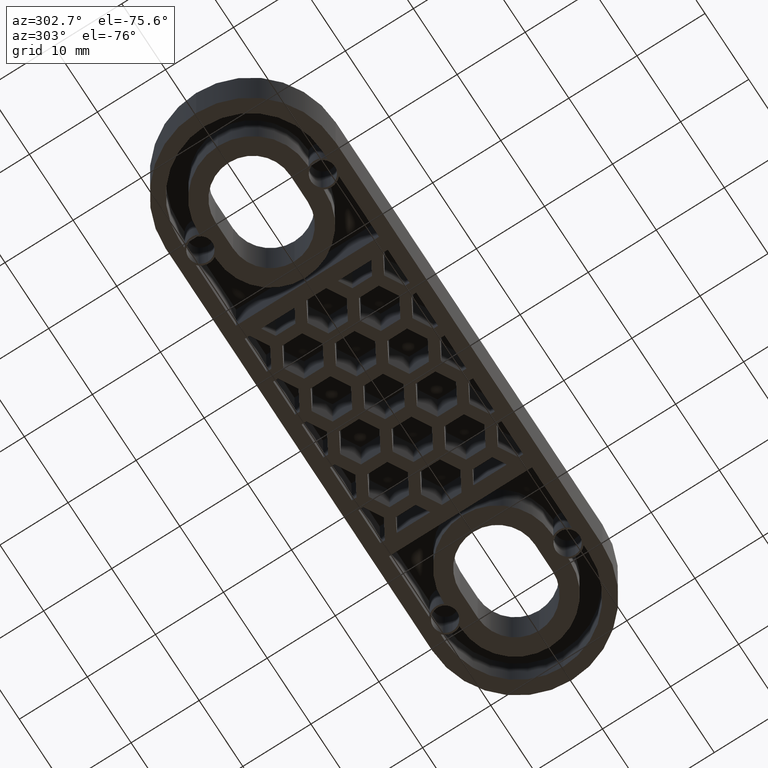
[diagram: clean part render]
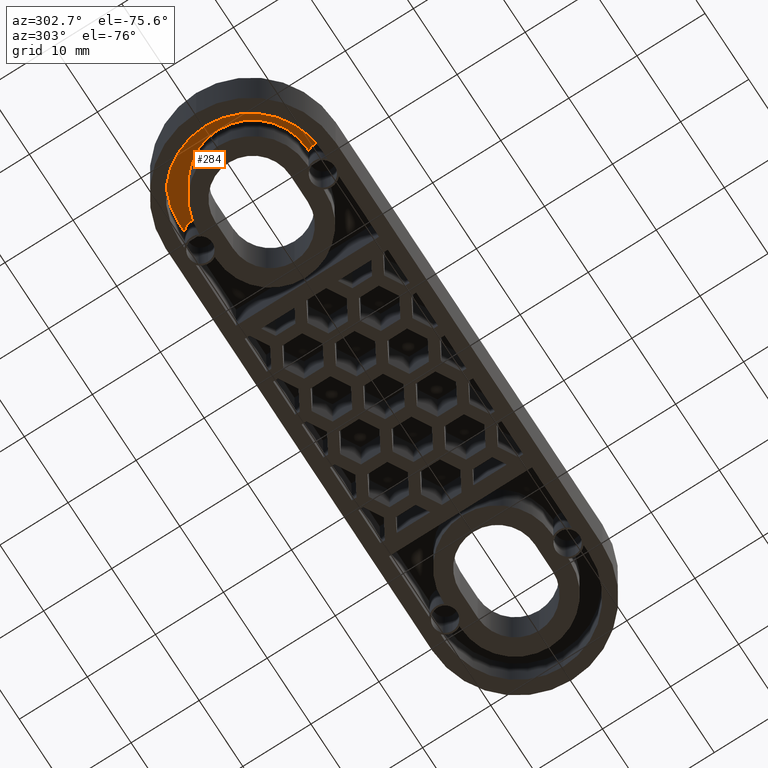
[diagram: same view with one face highlighted and labeled with its STEP entity id]
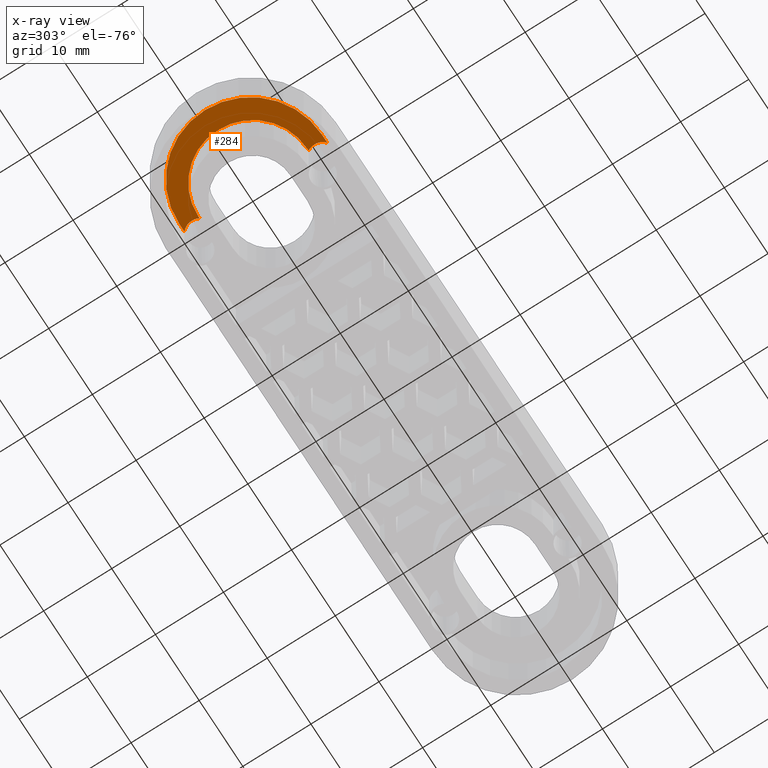
[diagram: x-ray of the same camera — body ghosted, the highlighted face saturated]
A machine part, auxiliary view. The second image highlights one B-rep face of the part: STEP entity #284.
The next image is the same camera in x-ray: the body ghosted, the highlighted face saturated — about 0% of this face is hidden behind the body in this view.
In plain terms, the highlighted planar face has unit normal (0, 0, 1).
Its self-contained STEP definition (entity closure, byte-faithful):
#284 = ADVANCED_FACE( '', ( #820 ), #821, .F. );
#820 = FACE_OUTER_BOUND( '', #1428, .T. );
#821 = PLANE( '', #1429 );
#1428 = EDGE_LOOP( '', ( #3303, #3304, #3305, #3306, #3307, #3308, #3309, #3310, #3311, #3312 ) );
#1429 = AXIS2_PLACEMENT_3D( '', #3313, #3314, #3315 );
#3303 = ORIENTED_EDGE( '', *, *, #4366, .T. );
#3304 = ORIENTED_EDGE( '', *, *, #4369, .T. );
#3305 = ORIENTED_EDGE( '', *, *, #4371, .T. );
#3306 = ORIENTED_EDGE( '', *, *, #4373, .T. );
#3307 = ORIENTED_EDGE( '', *, *, #4375, .T. );
#3308 = ORIENTED_EDGE( '', *, *, #4377, .T. );
#3309 = ORIENTED_EDGE( '', *, *, #4379, .T. );
#3310 = ORIENTED_EDGE( '', *, *, #4381, .T. );
#3311 = ORIENTED_EDGE( '', *, *, #4383, .T. );
#3312 = ORIENTED_EDGE( '', *, *, #4384, .T. );
#3313 = CARTESIAN_POINT( '', ( -28.0000000000000, 9.00000000000000, 7.99999999999998 ) );
#3314 = DIRECTION( '', ( 0.000000000000000, 6.12303176911189E-017, 1.00000000000000 ) );
#3315 = DIRECTION( '', ( -0.661437827766149, 0.749999999999999, -4.59227382683391E-017 ) );
#4366 = EDGE_CURVE( '', #5466, #5464, #5467, .T. );
#4369 = EDGE_CURVE( '', #5464, #5469, #5471, .T. );
#4371 = EDGE_CURVE( '', #5469, #5472, #5474, .T. );
#4373 = EDGE_CURVE( '', #5472, #5475, #5477, .T. );
#4375 = EDGE_CURVE( '', #5475, #5478, #5480, .T. );
#4377 = EDGE_CURVE( '', #5478, #5481, #5483, .T. );
#4379 = EDGE_CURVE( '', #5481, #5484, #5486, .T. );
#4381 = EDGE_CURVE( '', #5484, #5487, #5489, .T. );
#4383 = EDGE_CURVE( '', #5487, #5490, #5492, .T. );
#4384 = EDGE_CURVE( '', #5490, #5466, #5493, .T. );
#5464 = VERTEX_POINT( '', #7142 );
#5466 = VERTEX_POINT( '', #7145 );
#5467 = LINE( '', #7146, #7147 );
#5469 = VERTEX_POINT( '', #7150 );
#5471 = CIRCLE( '', #7153, 2.00000000000000 );
#5472 = VERTEX_POINT( '', #7154 );
#5474 = LINE( '', #7157, #7158 );
#5475 = VERTEX_POINT( '', #7159 );
#5477 = CIRCLE( '', #7162, 8.00000000000000 );
#5478 = VERTEX_POINT( '', #7163 );
#5480 = CIRCLE( '', #7166, 8.00000000000000 );
#5481 = VERTEX_POINT( '', #7167 );
#5483 = LINE( '', #7170, #7171 );
#5484 = VERTEX_POINT( '', #7172 );
#5486 = CIRCLE( '', #7175, 2.00000000000000 );
#5487 = VERTEX_POINT( '', #7176 );
#5489 = LINE( '', #7179, #7180 );
#5490 = VERTEX_POINT( '', #7181 );
#5492 = CIRCLE( '', #7184, 10.5000000000000 );
#5493 = CIRCLE( '', #7185, 10.5000000000000 );
#7142 = CARTESIAN_POINT( '', ( -29.3228756555323, 10.5000000000000, 7.99999999999998 ) );
#7145 = CARTESIAN_POINT( '', ( -30.5000000000000, 10.5000000000000, 7.99999999999998 ) );
#7146 = CARTESIAN_POINT( '', ( -30.5000000000000, 10.5000000000000, 7.99999999999998 ) );
#7147 = VECTOR( '', #8116, 1000.00000000000 );
#7150 = CARTESIAN_POINT( '', ( -29.7320508075689, 8.00000000000000, 7.99999999999998 ) );
#7153 = AXIS2_PLACEMENT_3D( '', #8119, #8120, #8121 );
#7154 = CARTESIAN_POINT( '', ( -30.0000000000000, 8.00000000000000, 7.99999999999998 ) );
#7157 = CARTESIAN_POINT( '', ( -29.7320508075689, 8.00000000000000, 7.99999999999998 ) );
#7158 = VECTOR( '', #8123, 1000.00000000000 );
#7159 = CARTESIAN_POINT( '', ( -38.0000000000000, -4.71432788640147E-015, 7.99999999999998 ) );
#7162 = AXIS2_PLACEMENT_3D( '', #8125, #8126, #8127 );
#7163 = CARTESIAN_POINT( '', ( -30.0000000000000, -8.00000000000000, 7.99999999999998 ) );
#7166 = AXIS2_PLACEMENT_3D( '', #8129, #8130, #8131 );
#7167 = CARTESIAN_POINT( '', ( -29.7320508075689, -8.00000000000000, 7.99999999999998 ) );
#7170 = CARTESIAN_POINT( '', ( -30.0000000000000, -8.00000000000000, 7.99999999999998 ) );
#7171 = VECTOR( '', #8133, 1000.00000000000 );
#7172 = CARTESIAN_POINT( '', ( -29.3228756555323, -10.5000000000000, 7.99999999999998 ) );
#7175 = AXIS2_PLACEMENT_3D( '', #8135, #8136, #8137 );
#7176 = CARTESIAN_POINT( '', ( -30.5000000000000, -10.5000000000000, 7.99999999999998 ) );
#7179 = CARTESIAN_POINT( '', ( -29.3228756555323, -10.5000000000000, 7.99999999999998 ) );
#7180 = VECTOR( '', #8139, 1000.00000000000 );
#7181 = CARTESIAN_POINT( '', ( -41.0000000000000, 3.95928949348256E-015, 7.99999999999998 ) );
#7184 = AXIS2_PLACEMENT_3D( '', #8141, #8142, #8143 );
#7185 = AXIS2_PLACEMENT_3D( '', #8144, #8145, #8146 );
#8116 = DIRECTION( '', ( 1.00000000000000, 5.55111512312578E-017, -3.39896542528966E-033 ) );
#8119 = CARTESIAN_POINT( '', ( -28.0000000000000, 9.00000000000000, 7.99999999999998 ) );
#8120 = DIRECTION( '', ( 2.73691106313441E-048, 6.12303176911189E-017, 1.00000000000000 ) );
#8121 = DIRECTION( '', ( 1.00000000000000, -1.66533453693773E-016, 1.01968962758690E-032 ) );
#8123 = DIRECTION( '', ( -1.00000000000000, 0.000000000000000, 0.000000000000000 ) );
#8125 = CARTESIAN_POINT( '', ( -30.0000000000000, -2.97960441042466E-015, 7.99999999999998 ) );
#8126 = DIRECTION( '', ( -4.10536659470161E-048, 6.12303176911189E-017, 1.00000000000000 ) );
#8127 = DIRECTION( '', ( -1.66533453693773E-016, 1.00000000000000, -6.12303176911189E-017 ) );
#8129 = CARTESIAN_POINT( '', ( -30.0000000000000, -2.97960441042466E-015, 7.99999999999998 ) );
#8130 = DIRECTION( '', ( 0.000000000000000, 6.12303176911189E-017, 1.00000000000000 ) );
#8131 = DIRECTION( '', ( 1.66533453693773E-016, 1.00000000000000, -6.12303176911189E-017 ) );
#8133 = DIRECTION( '', ( 1.00000000000000, 0.000000000000000, 0.000000000000000 ) );
#8135 = CARTESIAN_POINT( '', ( -28.0000000000000, -9.00000000000001, 7.99999999999998 ) );
#8136 = DIRECTION( '', ( 0.000000000000000, 6.12303176911189E-017, 1.00000000000000 ) );
#8137 = DIRECTION( '', ( 1.00000000000000, 4.44089209850063E-016, -2.71917234023173E-032 ) );
#8139 = DIRECTION( '', ( -1.00000000000000, 0.000000000000000, 0.000000000000000 ) );
#8141 = CARTESIAN_POINT( '', ( -30.5000000000000, 3.95928949348256E-015, 7.99999999999998 ) );
#8142 = DIRECTION( '', ( 0.000000000000000, -6.12303176911189E-017, -1.00000000000000 ) );
#8143 = DIRECTION( '', ( 2.22044604925031E-016, 1.00000000000000, -6.12303176911189E-017 ) );
#8144 = CARTESIAN_POINT( '', ( -30.5000000000000, 3.95928949348256E-015, 7.99999999999998 ) );
#8145 = DIRECTION( '', ( 0.000000000000000, -6.12303176911189E-017, -1.00000000000000 ) );
#8146 = DIRECTION( '', ( 0.000000000000000, 1.00000000000000, -6.12303176911189E-017 ) );